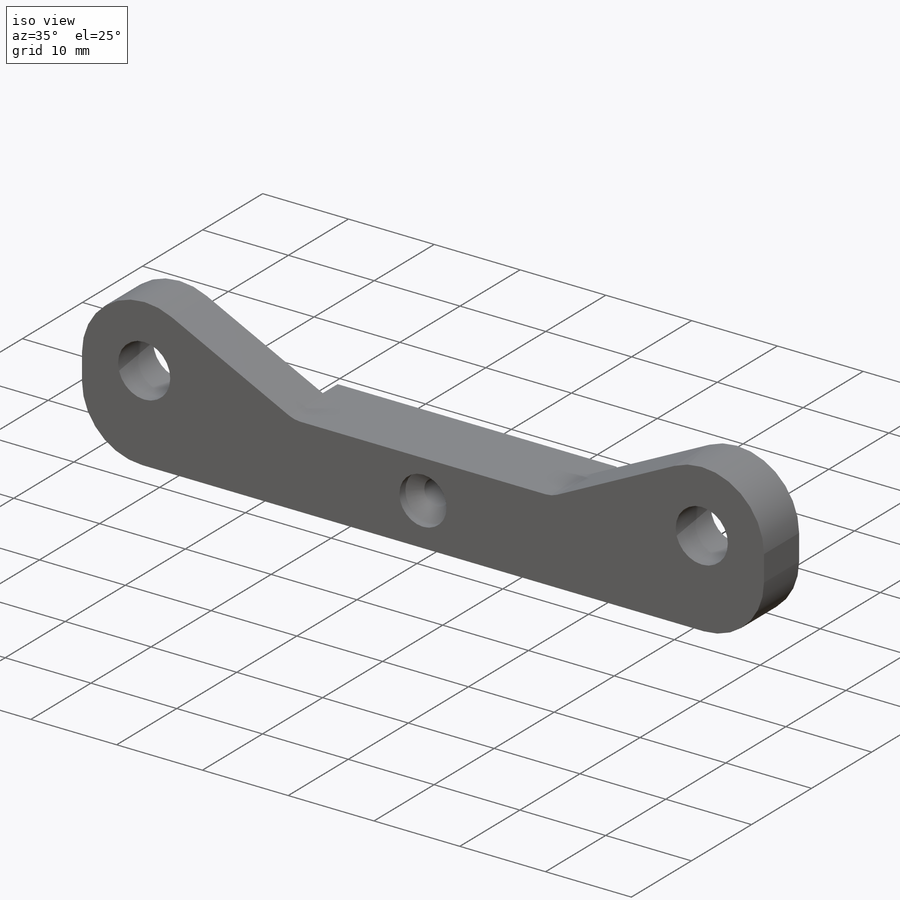
[diagram: iso view]
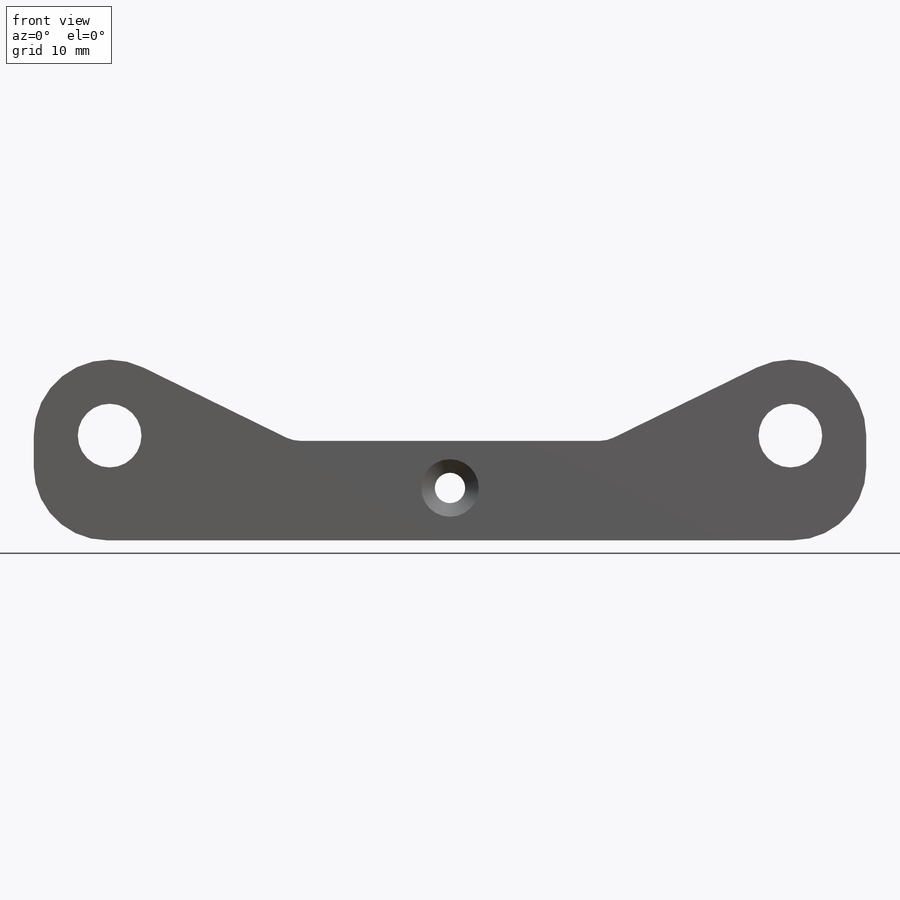
[diagram: front view]
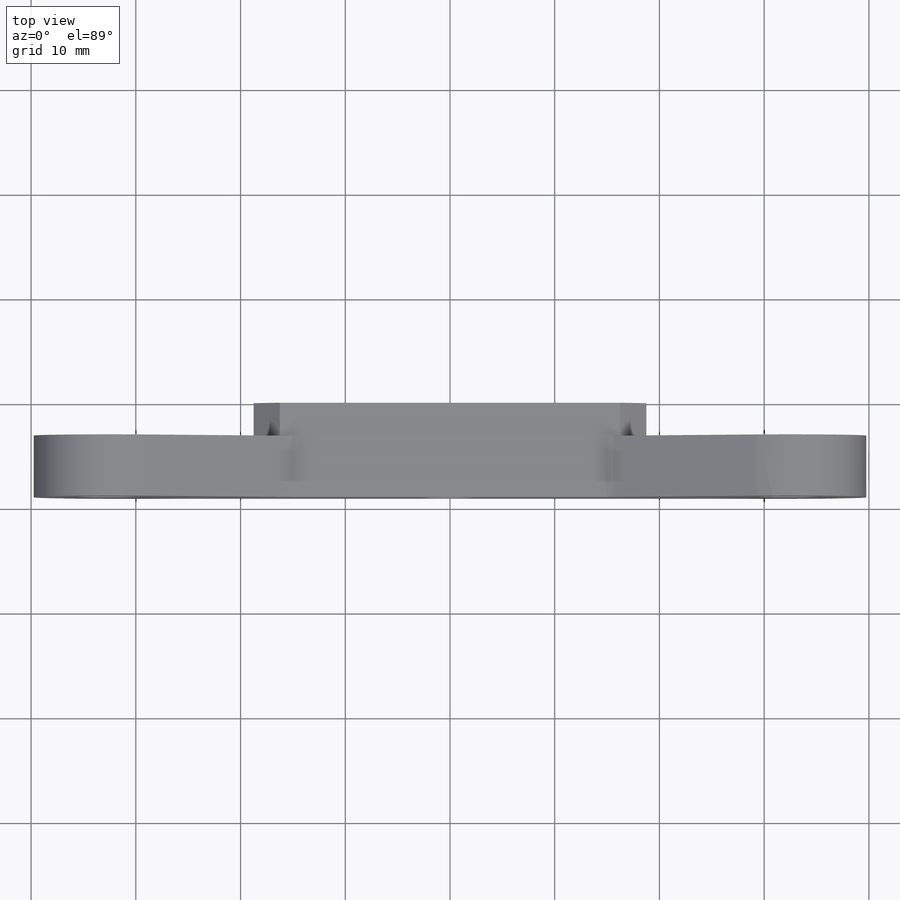
[diagram: top view]
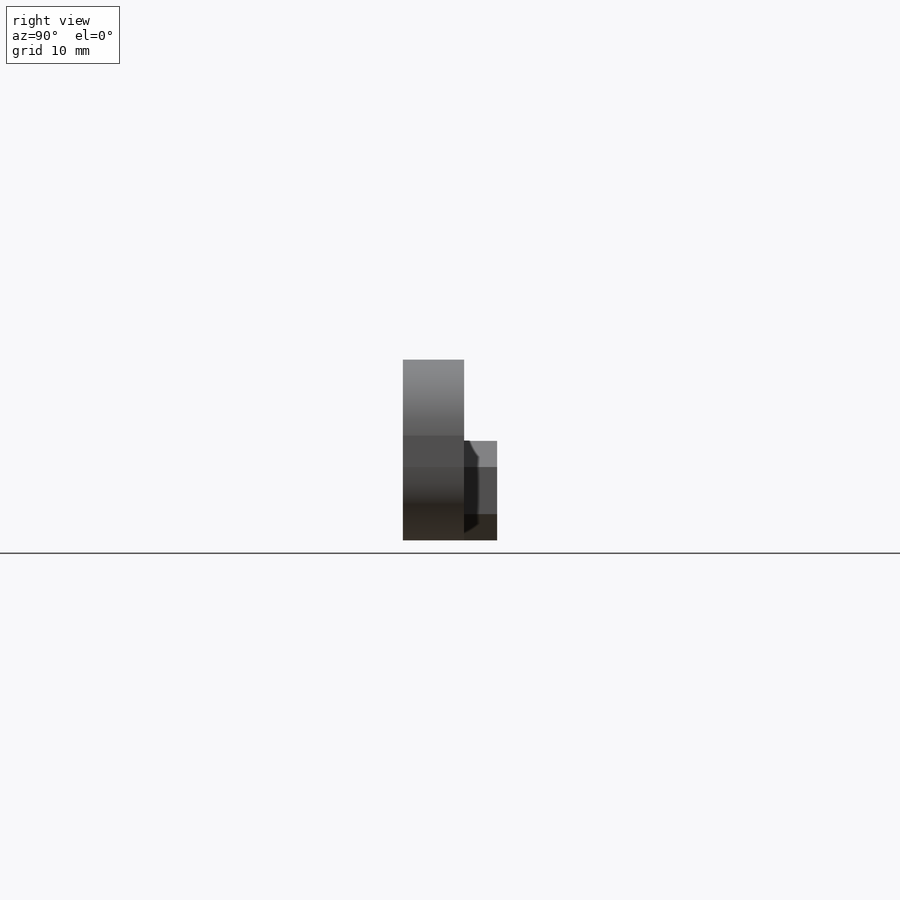
[diagram: right view]
SOLIDWORKS PART (.sldprt)
format: sldprt  version: not decoded by parser v0  size: 815,104 bytes
history: native  units: mm
features: sketch x26, extrude x11, cut_extrude x7, mirror x6, hole x4, fillet x3, chamfer x2, material x1 (+12 scaffold rows collapsed)
feature tree (72):
  scaffold x12  (default folders/planes/origin — collapsed)
  material  "POM copolymère d'acétal"
  sketch  "Sketch1"  dims[D1=77.5mm D2=7.0mm]
  extrude  "Boss-Extrude1"  Depth=9mm
  sketch  "Sketch2"  dims[c1.D1=12.5mm c1.D2=15.0mm c1.D3=15.0mm c2.D1=6.3mm c2.D3=19.0mm c2.D2=37.5mm]
  cut_extrude  "Cut-Extrude1"  [1 undecoded]
  sketch  "Sketch3"  dims[D1=12.5mm]
  extrude  "Boss-Extrude2"  Depth=8mm
  sketch  "Sketch4"  dims[D2=6.08mm D1=5.0mm]
  cut_extrude  "Cut-Extrude2"  Depth=24.5mm
  sketch  "Sketch5"  dims[c1.D1=~21.214763mm c2.D1=15.0deg c2.D2=15.0mm]
  cut_extrude  "Cut-Extrude3"  Depth=5mm
  sketch  "Sketch6"  dims[D1=12.4mm]
  cut_extrude  "Cut-Extrude4"  Depth=1mm
  mirror  "Mirror1"
  mirror  "Mirror2"
  sketch  "Sketch7"  dims[D1=8.5mm]
  cut_extrude  "Cut-Extrude5"  Depth=1mm
  mirror  "Mirror3"
  mirror  "Mirror5"
  hole  "Tap Drill for M2 Tap1"  Diameter=1.6mm Depth=18.00005mm
  sketch  "Sketch9"  dims[D1=50.0mm]
  sketch  "Sketch10"  dims[hole-wizard template sketch: 60 standard entries collapsed; hole parameters kept: c18.Thru Hole Depth=~18.00005mm]
  sketch  "Sketch11"  dims[D1=2.25mm]
  cut_extrude  "Cut-Extrude6"  Depth=27mm
  mirror  "Mirror6"
  sketch  "Sketch12"
  cut_extrude  "Cut-Extrude7"  Depth=22mm
  hole  "Ø2.0 (2) Diameter Hole1"  Diameter=2mm Depth=30.5mm
  sketch  "Sketch14"  dims[D1=30.0mm]
  sketch  "Sketch13"  dims[hole-wizard template sketch: 47 standard entries collapsed; hole parameters kept: c15.Hole Depth=30.5mm c15.D3=~14.816244mm c15.Drill Angle=180.0deg]
  hole  "Ø2.0 (2) Diameter Hole2"  Diameter=2mm Depth=16mm
  sketch  "Sketch16"
  sketch  "Sketch15"  dims[hole-wizard template sketch: 47 standard entries collapsed; hole parameters kept: c15.Hole Depth=16.0mm c15.D3=~14.816244mm c15.Drill Angle=118.0deg]
  sketch  "Esquisse2"
  extrude  "Boss.-Extru.1"  [1 undecoded]
  mirror  "Symétrie1"
  chamfer  "Chanfrein1"  Distance=0.5mm Angle=45deg
  sketch  "Esquisse5"
  extrude  "Boss.-Extru.3"  [1 undecoded]
  sketch  "Esquisse6"
  extrude  "Boss.-Extru.4"  [1 undecoded]
  sketch  "Sketch22"  dims[D1=0.0mm]
  extrude  "Boss-Extrude3"  Depth=1.5mm
  hole  "CSK for M2.5 Countersunk Flat Head Screw1"  Diameter=2.9mm Depth=9mm
  sketch  "Sketch24"
  sketch  "Sketch23"  dims[hole-wizard template sketch: 57 standard entries collapsed; hole parameters kept: c17.Thru Hole Dia.=2.9mm c17.Thru Hole Depth=9.0mm c17.C'Sink Dia.=5.5mm c17.D4=~19.358014mm c17.C'Sink Angle=90.0deg c17.Head Clearance=1.0mm]
  sketch  "Sketch25"  dims[D1=0.0mm]
  extrude  "Boss-Extrude4"  Depth=1mm
  sketch  "Sketch28"  dims[D1=1.0mm]
  extrude  "Boss-Extrude7"  [1 undecoded]
  fillet  "Fillet1"  Radius=7mm
  sketch  "Sketch26"  dims[c1.D1=~7.028331mm c2.D1=45.0deg c3.D1=15.0mm]
  extrude  "Boss-Extrude5"  [1 undecoded]
  fillet  "Fillet2"  Radius=3mm
  chamfer  "Chamfer1"  Distance=2.5mm Angle=45deg
  sketch  "Sketch27"
  extrude  "Boss-Extrude6"  Depth=2mm
  sketch  "Sketch29"
  extrude  "Boss-Extrude8"  [1 undecoded]
  fillet  "Fillet3"  Radius=7mm
decode coverage: 38 of 59 modeling features carry decoded parameters
note: ~ marks probable driven/reference dimensions
note: 7 parameter values undecoded
summary: no parameter record found for 7 features; Diameter pulled from absorbed wizard sketch
note: suppression state not decoded; provenance and decode notes live in map.json
